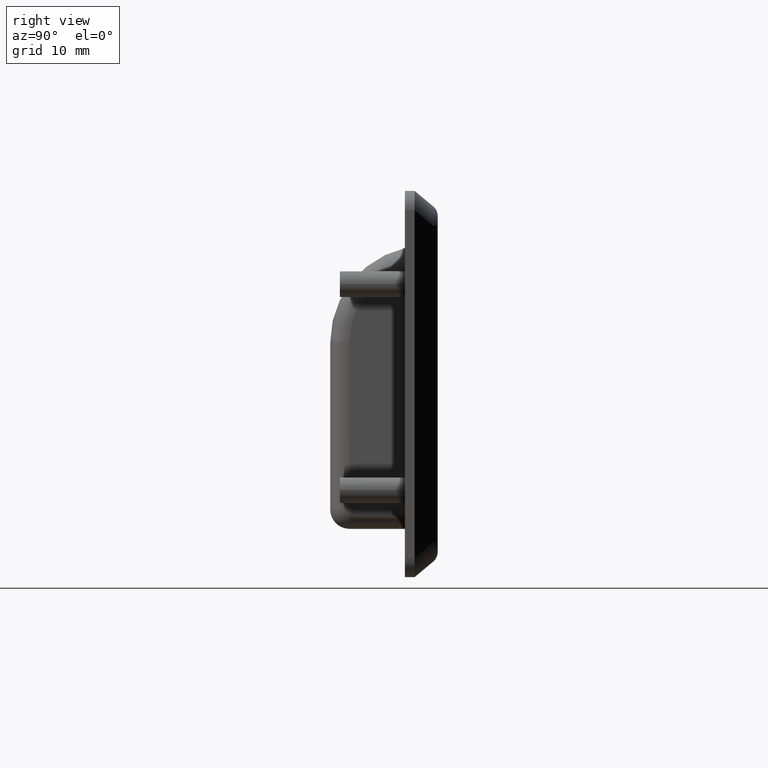
[diagram: clean part render]
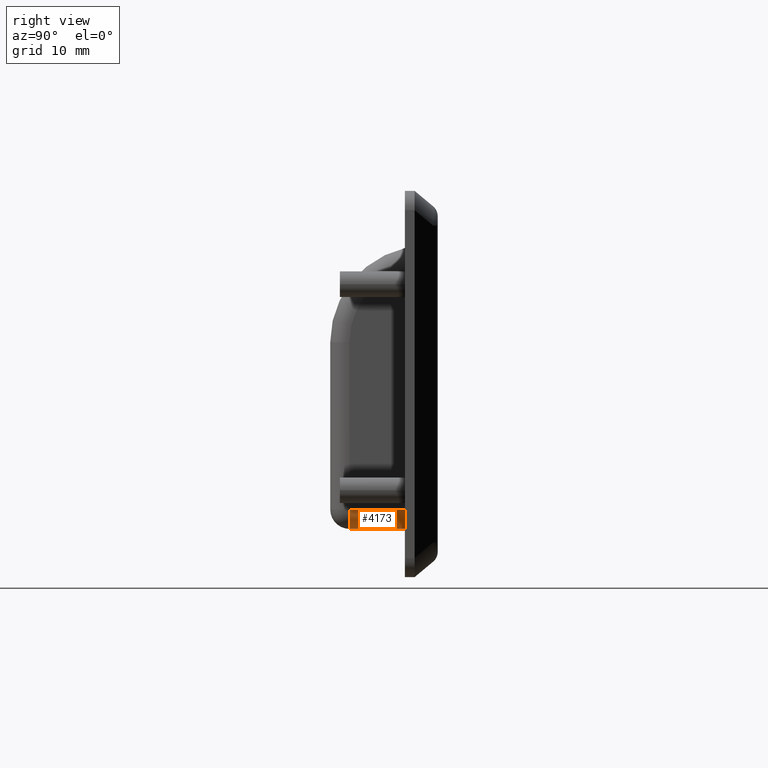
[diagram: same view with one face highlighted and labeled with its STEP entity id]
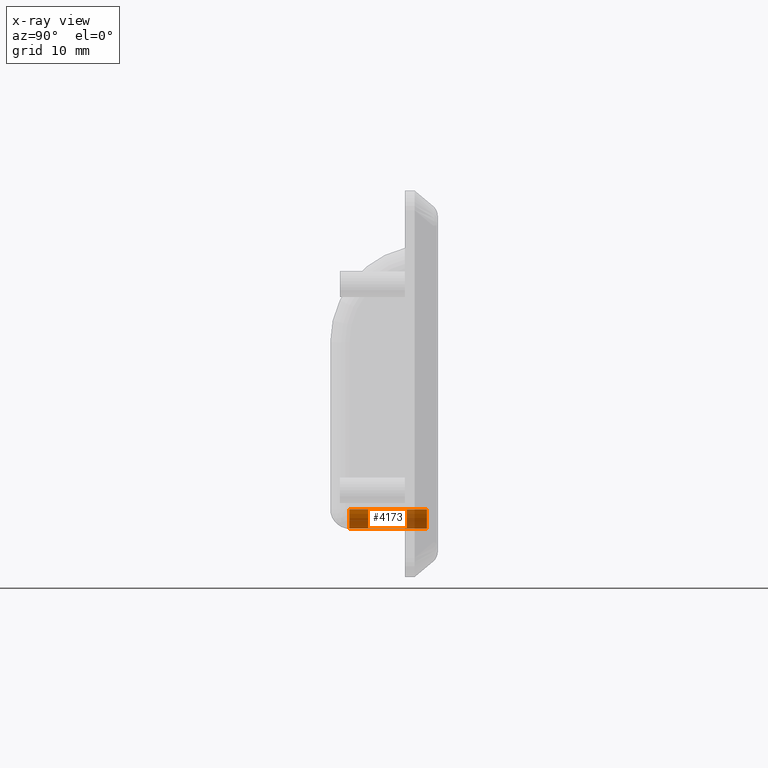
[diagram: x-ray of the same camera — body ghosted, the highlighted face saturated]
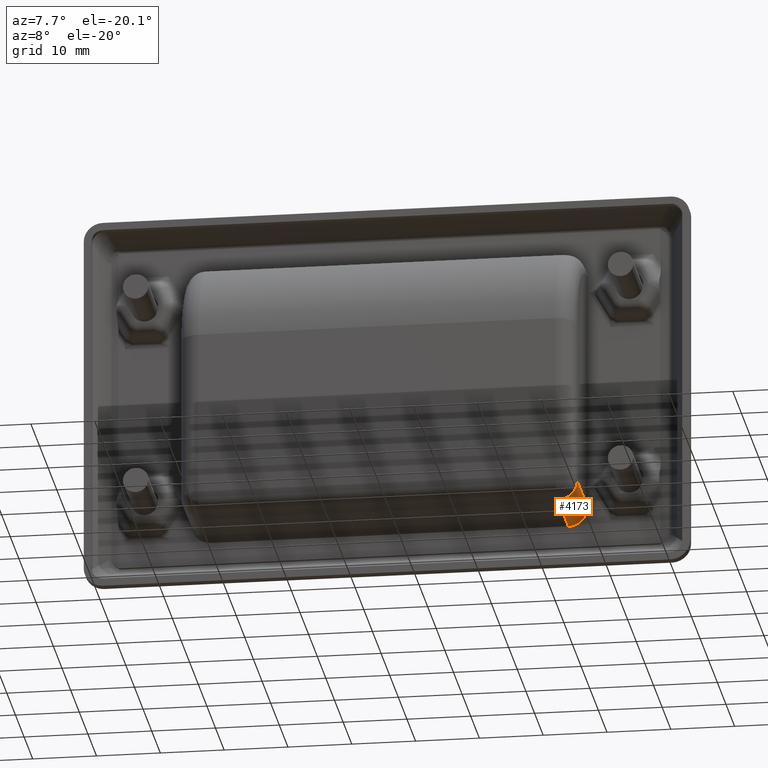
[diagram: same view with one face highlighted and labeled with its STEP entity id]
A machine part, right view. The second image highlights one B-rep face of the part: STEP entity #4173.
The next image is the same camera in x-ray: the body ghosted, the highlighted face saturated — about 28% of this face is hidden behind the body in this view.
A second angle (auxiliary view) of the same face is appended — the face is thin or edge-on in the first view.
In plain terms, the highlighted cylindrical surface (edge-blend (fillet) strip) has radius 3 mm, axis along (0, 1, 0).
Its self-contained STEP definition (entity closure, byte-faithful):
#495=LINE('',#8290,#810);
#496=LINE('',#8293,#811);
#810=VECTOR('',#5905,12.);
#811=VECTOR('',#5908,12.);
#1182=FACE_OUTER_BOUND('',#1472,.T.);
#1472=EDGE_LOOP('',(#3718,#3719,#3720,#3721));
#1663=CIRCLE('',#4651,3.);
#1664=CIRCLE('',#4652,3.);
#2010=VERTEX_POINT('',#8283);
#2011=VERTEX_POINT('',#8287);
#2012=VERTEX_POINT('',#8289);
#2013=VERTEX_POINT('',#8291);
#2597=EDGE_CURVE('',#2010,#2011,#1663,.T.);
#2598=EDGE_CURVE('',#2011,#2012,#495,.T.);
#2599=EDGE_CURVE('',#2012,#2013,#1664,.F.);
#2600=EDGE_CURVE('',#2013,#2010,#496,.T.);
#3718=ORIENTED_EDGE('',*,*,#2597,.T.);
#3719=ORIENTED_EDGE('',*,*,#2598,.T.);
#3720=ORIENTED_EDGE('',*,*,#2599,.T.);
#3721=ORIENTED_EDGE('',*,*,#2600,.T.);
#3914=CYLINDRICAL_SURFACE('',#4650,3.);
#4173=ADVANCED_FACE('',(#1182),#3914,.T.);
#4650=AXIS2_PLACEMENT_3D('',#8286,#5901,#5902);
#4651=AXIS2_PLACEMENT_3D('',#8288,#5903,#5904);
#4652=AXIS2_PLACEMENT_3D('',#8292,#5906,#5907);
#5901=DIRECTION('center_axis',(0.,7.40148683083438E-16,-1.));
#5902=DIRECTION('ref_axis',(0.707106781186549,-0.707106781186546,-5.23364152894591E-16));
#5903=DIRECTION('center_axis',(0.,7.40148683083438E-16,-1.));
#5904=DIRECTION('ref_axis',(1.,0.,0.));
#5905=DIRECTION('',(0.,7.40148683083438E-16,-1.));
#5906=DIRECTION('center_axis',(0.,1.84147568988307E-16,-1.));
#5907=DIRECTION('ref_axis',(0.707106781186549,-0.707106781186546,-5.23364152894591E-16));
#5908=DIRECTION('',(0.,-7.40148683083438E-16,1.));
#8283=CARTESIAN_POINT('',(31.,-19.,12.5));
#8286=CARTESIAN_POINT('Origin',(28.,-19.,9.7939617646748));
#8287=CARTESIAN_POINT('',(28.,-22.,12.5));
#8288=CARTESIAN_POINT('Origin',(28.,-19.,12.5));
#8289=CARTESIAN_POINT('',(28.,-22.,0.499999999999998));
#8290=CARTESIAN_POINT('',(28.,-22.,9.7939617646748));
#8291=CARTESIAN_POINT('',(31.,-19.,0.499999999999998));
#8292=CARTESIAN_POINT('Origin',(28.,-19.,0.499999999999974));
#8293=CARTESIAN_POINT('',(31.,-19.,9.7939617646748));